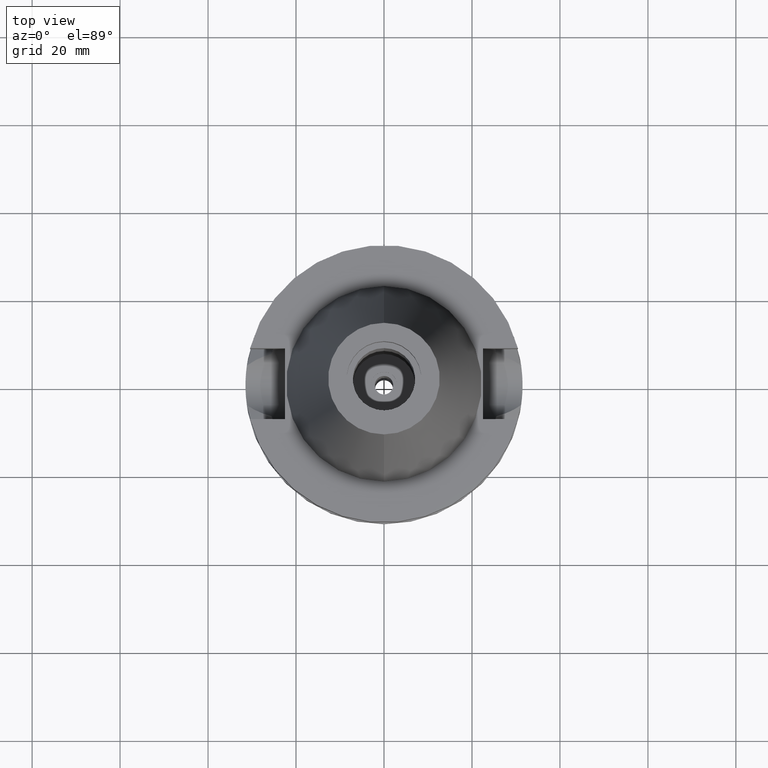
[diagram: clean part render]
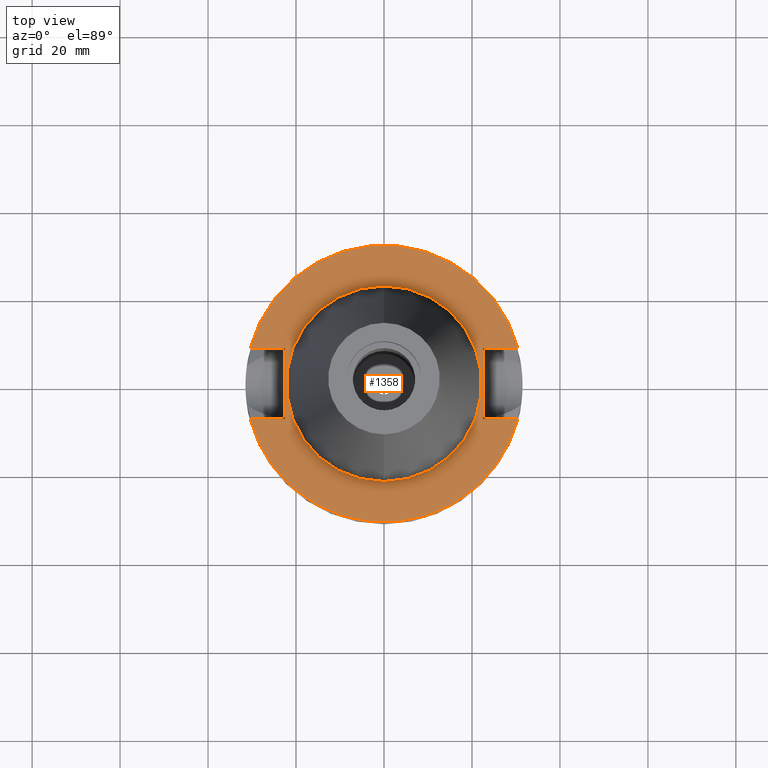
[diagram: same view with one face highlighted and labeled with its STEP entity id]
A machine part, top view. The second image highlights one B-rep face of the part: STEP entity #1358.
In plain terms, the highlighted planar face has unit normal (0, 0, -1).
Its self-contained STEP definition (entity closure, byte-faithful):
#15 = EDGE_CURVE ( 'NONE', #1357, #1177, #2381, .T. ) ;
#21 = DIRECTION ( 'NONE',  ( 0.0000000000000000000, -1.000000000000000000, 0.0000000000000000000 ) ) ;
#234 = CARTESIAN_POINT ( 'NONE',  ( -22.50000000000000000, -8.050000000000000711, -1.000000000000000000 ) ) ;
#242 = CARTESIAN_POINT ( 'NONE',  ( -30.45402272279000044, -8.050000000000000711, -1.000000000000000000 ) ) ;
#307 = AXIS2_PLACEMENT_3D ( 'NONE', #1495, #795, #2223 ) ;
#310 = DIRECTION ( 'NONE',  ( 1.000000000000000000, 3.573249715389999860E-14, 0.0000000000000000000 ) ) ;
#360 = FACE_BOUND ( 'NONE', #596, .T. ) ;
#379 = FACE_OUTER_BOUND ( 'NONE', #2840, .T. ) ;
#437 = ORIENTED_EDGE ( 'NONE', *, *, #1169, .T. ) ;
#480 = CARTESIAN_POINT ( 'NONE',  ( 0.0000000000000000000, 2.109086717491999768E-14, -1.000000000000000000 ) ) ;
#497 = CARTESIAN_POINT ( 'NONE',  ( -30.45402272279000044, 8.050000000000000711, -1.000000000000000000 ) ) ;
#543 = ORIENTED_EDGE ( 'NONE', *, *, #2056, .F. ) ;
#572 = DIRECTION ( 'NONE',  ( 0.0000000000000000000, -1.000000000000000000, 0.0000000000000000000 ) ) ;
#595 = VECTOR ( 'NONE', #21, 1000.000000000000000 ) ;
#596 = EDGE_LOOP ( 'NONE', ( #1589, #543 ) ) ;
#670 = VERTEX_POINT ( 'NONE', #497 ) ;
#752 = LINE ( 'NONE', #947, #2295 ) ;
#795 = DIRECTION ( 'NONE',  ( 0.0000000000000000000, 0.0000000000000000000, -1.000000000000000000 ) ) ;
#829 = ORIENTED_EDGE ( 'NONE', *, *, #1639, .F. ) ;
#861 = DIRECTION ( 'NONE',  ( 0.0000000000000000000, 1.000000000000000000, 0.0000000000000000000 ) ) ;
#905 = DIRECTION ( 'NONE',  ( 0.0000000000000000000, 0.0000000000000000000, 1.000000000000000000 ) ) ;
#912 = CIRCLE ( 'NONE', #2392, 22.22500000000000142 ) ;
#947 = CARTESIAN_POINT ( 'NONE',  ( 22.50000000000000000, 8.050000000000000711, -1.000000000000000000 ) ) ;
#965 = CARTESIAN_POINT ( 'NONE',  ( 22.50000000000000000, 8.050000000000000711, -1.000000000000000000 ) ) ;
#993 = EDGE_CURVE ( 'NONE', #2301, #2610, #912, .T. ) ;
#1004 = CARTESIAN_POINT ( 'NONE',  ( 0.0000000000000000000, -22.22500000000000142, -1.000000000000000000 ) ) ;
#1014 = VECTOR ( 'NONE', #1786, 1000.000000000000000 ) ;
#1034 = CARTESIAN_POINT ( 'NONE',  ( -22.50000000000000000, -8.050000000000000711, -1.000000000000000000 ) ) ;
#1040 = AXIS2_PLACEMENT_3D ( 'NONE', #2921, #905, #2272 ) ;
#1051 = VERTEX_POINT ( 'NONE', #242 ) ;
#1091 = CARTESIAN_POINT ( 'NONE',  ( 0.0000000000000000000, 2.109086717491999768E-14, -1.000000000000000000 ) ) ;
#1107 = LINE ( 'NONE', #234, #2409 ) ;
#1114 = AXIS2_PLACEMENT_3D ( 'NONE', #1707, #2639, #572 ) ;
#1169 = EDGE_CURVE ( 'NONE', #1825, #2182, #752, .T. ) ;
#1177 = VERTEX_POINT ( 'NONE', #1858 ) ;
#1201 = CARTESIAN_POINT ( 'NONE',  ( 22.50000000000000000, -8.050000000000000711, -1.000000000000000000 ) ) ;
#1237 = VERTEX_POINT ( 'NONE', #1409 ) ;
#1251 = LINE ( 'NONE', #1034, #1854 ) ;
#1278 = EDGE_CURVE ( 'NONE', #2110, #1051, #1251, .T. ) ;
#1296 = PLANE ( 'NONE',  #307 ) ;
#1328 = ORIENTED_EDGE ( 'NONE', *, *, #15, .F. ) ;
#1337 = ORIENTED_EDGE ( 'NONE', *, *, #2281, .F. ) ;
#1351 = LINE ( 'NONE', #1993, #1014 ) ;
#1357 = VERTEX_POINT ( 'NONE', #2638 ) ;
#1358 = ADVANCED_FACE ( 'NONE', ( #379, #360 ), #1296, .F. ) ;
#1408 = ORIENTED_EDGE ( 'NONE', *, *, #2735, .F. ) ;
#1409 = CARTESIAN_POINT ( 'NONE',  ( -22.50000000000000000, 8.050000000000000711, -1.000000000000000000 ) ) ;
#1425 = DIRECTION ( 'NONE',  ( 1.000000000000000000, -3.506251283225999947E-14, 0.0000000000000000000 ) ) ;
#1495 = CARTESIAN_POINT ( 'NONE',  ( 0.0000000000000000000, 1.212400331155999925E-14, -1.000000000000000000 ) ) ;
#1513 = VECTOR ( 'NONE', #310, 1000.000000000000000 ) ;
#1524 = DIRECTION ( 'NONE',  ( -1.000000000000000000, 3.550916904668000126E-14, 0.0000000000000000000 ) ) ;
#1589 = ORIENTED_EDGE ( 'NONE', *, *, #993, .F. ) ;
#1639 = EDGE_CURVE ( 'NONE', #2110, #1237, #1107, .T. ) ;
#1640 = DIRECTION ( 'NONE',  ( 0.0000000000000000000, 1.000000000000000000, 0.0000000000000000000 ) ) ;
#1644 = AXIS2_PLACEMENT_3D ( 'NONE', #1091, #2925, #861 ) ;
#1707 = CARTESIAN_POINT ( 'NONE',  ( 0.0000000000000000000, 2.109086717491999768E-14, -1.000000000000000000 ) ) ;
#1786 = DIRECTION ( 'NONE',  ( -1.000000000000000000, -3.550916904668000126E-14, 0.0000000000000000000 ) ) ;
#1825 = VERTEX_POINT ( 'NONE', #2402 ) ;
#1854 = VECTOR ( 'NONE', #1524, 1000.000000000000000 ) ;
#1858 = CARTESIAN_POINT ( 'NONE',  ( 30.45402272279000044, -8.050000000000000711, -1.000000000000000000 ) ) ;
#1895 = CARTESIAN_POINT ( 'NONE',  ( 30.45402272279000044, 8.050000000000000711, -1.000000000000000000 ) ) ;
#1956 = EDGE_CURVE ( 'NONE', #1177, #1051, #2415, .T. ) ;
#1993 = CARTESIAN_POINT ( 'NONE',  ( -22.50000000000000000, 8.050000000000000711, -1.000000000000000000 ) ) ;
#2023 = DIRECTION ( 'NONE',  ( 0.0000000000000000000, 1.000000000000000000, 0.0000000000000000000 ) ) ;
#2056 = EDGE_CURVE ( 'NONE', #2610, #2301, #2207, .T. ) ;
#2077 = LINE ( 'NONE', #965, #595 ) ;
#2110 = VERTEX_POINT ( 'NONE', #2479 ) ;
#2182 = VERTEX_POINT ( 'NONE', #1895 ) ;
#2207 = CIRCLE ( 'NONE', #1040, 22.22500000000000142 ) ;
#2223 = DIRECTION ( 'NONE',  ( 0.0000000000000000000, -1.000000000000000000, 0.0000000000000000000 ) ) ;
#2272 = DIRECTION ( 'NONE',  ( 0.0000000000000000000, -1.000000000000000000, 0.0000000000000000000 ) ) ;
#2281 = EDGE_CURVE ( 'NONE', #1825, #1357, #2077, .T. ) ;
#2287 = ORIENTED_EDGE ( 'NONE', *, *, #1278, .T. ) ;
#2295 = VECTOR ( 'NONE', #1425, 1000.000000000000000 ) ;
#2301 = VERTEX_POINT ( 'NONE', #2794 ) ;
#2381 = LINE ( 'NONE', #1201, #1513 ) ;
#2392 = AXIS2_PLACEMENT_3D ( 'NONE', #480, #2526, #2023 ) ;
#2402 = CARTESIAN_POINT ( 'NONE',  ( 22.50000000000000000, 8.050000000000000711, -1.000000000000000000 ) ) ;
#2409 = VECTOR ( 'NONE', #1640, 1000.000000000000000 ) ;
#2415 = CIRCLE ( 'NONE', #1114, 31.50000000000000000 ) ;
#2479 = CARTESIAN_POINT ( 'NONE',  ( -22.50000000000000000, -8.050000000000000711, -1.000000000000000000 ) ) ;
#2526 = DIRECTION ( 'NONE',  ( 0.0000000000000000000, 0.0000000000000000000, 1.000000000000000000 ) ) ;
#2610 = VERTEX_POINT ( 'NONE', #1004 ) ;
#2638 = CARTESIAN_POINT ( 'NONE',  ( 22.50000000000000000, -8.050000000000000711, -1.000000000000000000 ) ) ;
#2639 = DIRECTION ( 'NONE',  ( 0.0000000000000000000, 0.0000000000000000000, -1.000000000000000000 ) ) ;
#2712 = CIRCLE ( 'NONE', #1644, 31.50000000000000000 ) ;
#2730 = EDGE_CURVE ( 'NONE', #1237, #670, #1351, .T. ) ;
#2735 = EDGE_CURVE ( 'NONE', #670, #2182, #2712, .T. ) ;
#2794 = CARTESIAN_POINT ( 'NONE',  ( 0.0000000000000000000, 22.22500000000000142, -1.000000000000000000 ) ) ;
#2836 = ORIENTED_EDGE ( 'NONE', *, *, #2730, .F. ) ;
#2840 = EDGE_LOOP ( 'NONE', ( #2287, #2883, #1328, #1337, #437, #1408, #2836, #829 ) ) ;
#2883 = ORIENTED_EDGE ( 'NONE', *, *, #1956, .F. ) ;
#2921 = CARTESIAN_POINT ( 'NONE',  ( 0.0000000000000000000, 2.109086717491999768E-14, -1.000000000000000000 ) ) ;
#2925 = DIRECTION ( 'NONE',  ( 0.0000000000000000000, 0.0000000000000000000, -1.000000000000000000 ) ) ;